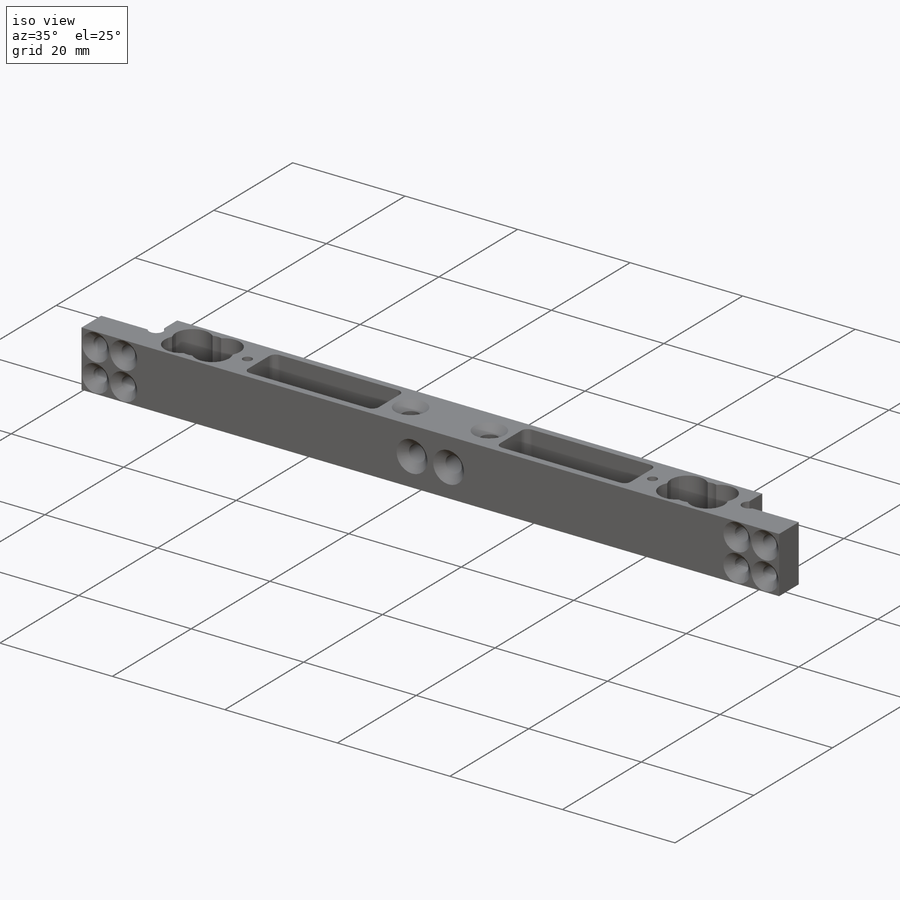
[diagram: iso view]
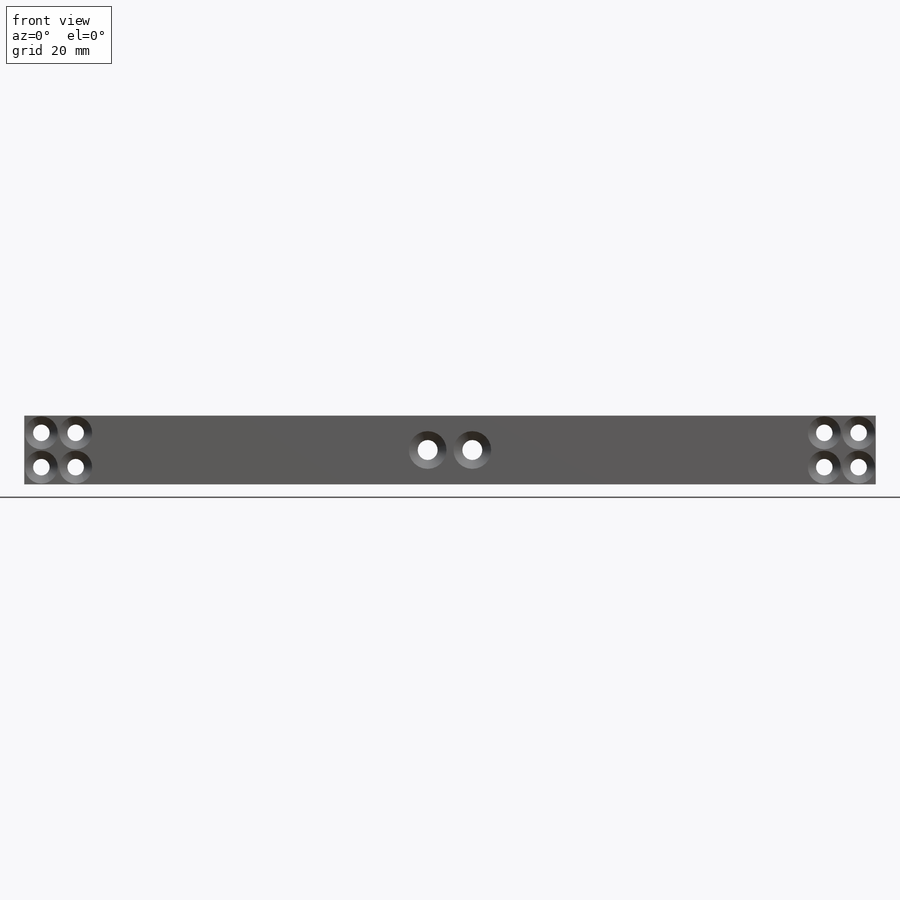
[diagram: front view]
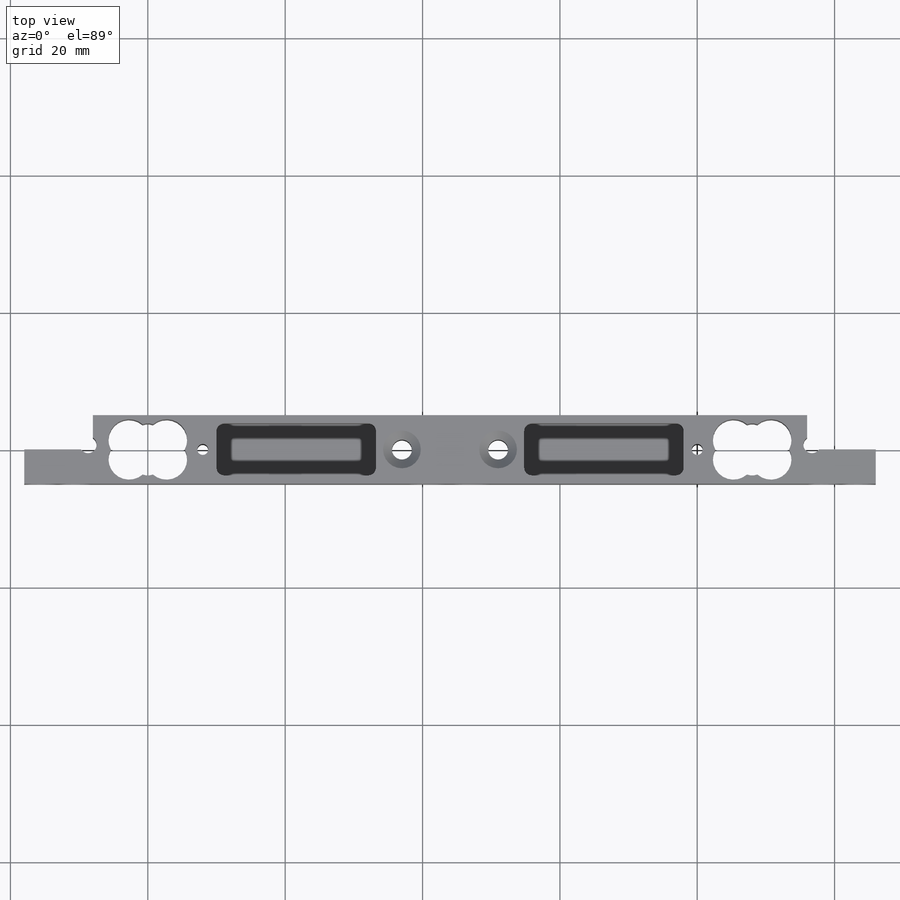
[diagram: top view]
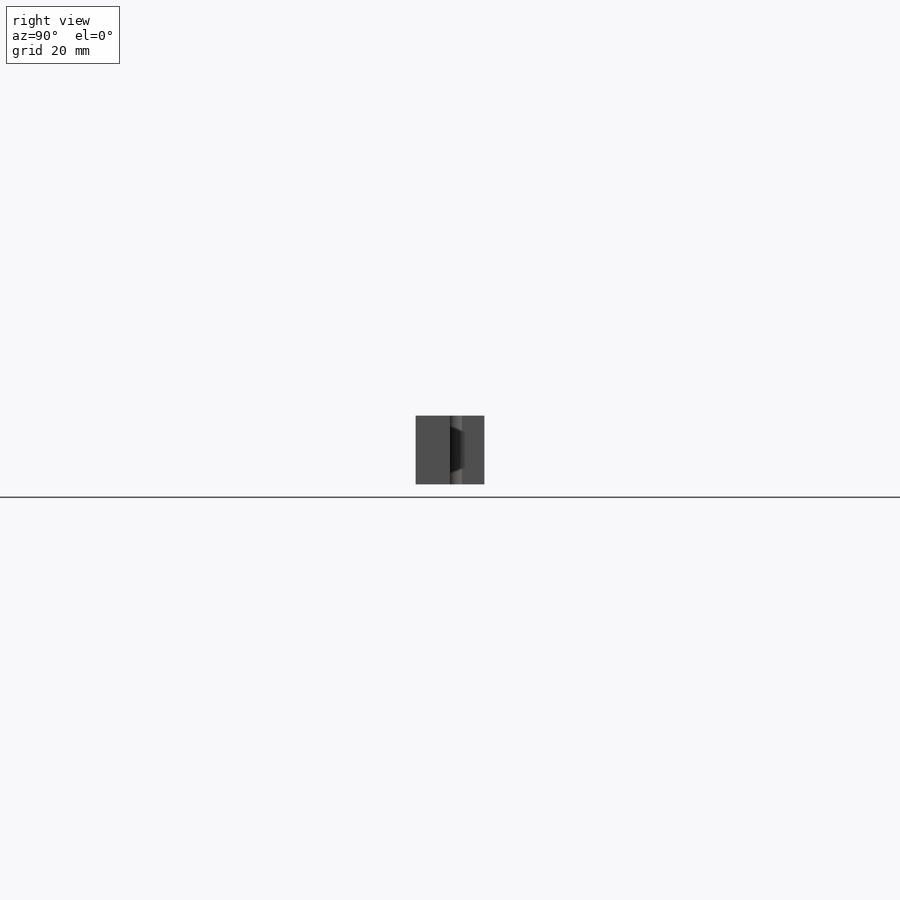
[diagram: right view]
SOLIDWORKS PART (.sldprt)
format: sldprt  version: not decoded by parser v0  size: 676,352 bytes
history: native  units: mm
features: sketch x26, cut_extrude x10, hole x5, mirror x4, chamfer x4, extrude x2, material x1, plane x1 (+12 scaffold rows collapsed)
feature tree (65):
  scaffold x12  (default folders/planes/origin — collapsed)
  material  "6061 Alloy"
  sketch  "Sketch1"  dims[D1=10.0mm D2=40.0mm]
  extrude  "Boss-Extrude1"  Depth=5mm
  sketch  "Sketch3"  dims[D1=6.0mm D2=5.46mm D3=0.6mm]
  cut_extrude  "Cut-Extrude1"  [1 undecoded]
  mirror  "Mirror1"
  sketch  "Sketch5"
  cut_extrude  "Cut-Extrude2"  [1 undecoded]
  sketch  "Sketch6"
  cut_extrude  "Cut-Extrude3"  [1 undecoded]
  sketch  "Sketch7"  dims[D1=8.0mm D2=5.0mm]
  cut_extrude  "Cut-Extrude4"  Depth=14mm
  sketch  "Sketch9"  dims[D1=2.2mm]
  cut_extrude  "Cut-Extrude5"  Depth=14mm
  hole  "M2 Clearance Hole2"  Diameter=2.4mm Depth=11.5mm
  sketch  "Sketch12"  dims[c1.D1=5.0mm c1.D2=2.5mm c2.D1=5.0mm c2.D2=2.5mm c2.D3=5.0mm c3.D2=30.5mm]
  sketch  "Sketch11"  dims[hole-wizard template sketch: 50 standard entries collapsed; hole parameters above]
  sketch  "Sketch14"  dims[D1=4.0mm D2=1.8mm]
  cut_extrude  "Cut-Extrude6"  Depth=10mm
  mirror  "Mirror2"
  sketch  "Sketch13"  dims[D1=128.0mm]
  extrude  "Boss-Extrude2"  [1 undecoded]
  plane  "Plane1"
  sketch  "Sketch16"  dims[c1.D2=3.0mm c1.D3=3.0mm c1.D4=2.0mm c1.D1=88.0mm c2.D2=2.8mm c2.D3=5.46mm c2.D4=1.8mm]
  cut_extrude  "Cut-Extrude7"  Depth=10mm
  mirror  "Mirror3"
  hole  "CSK for M2.5 Countersunk Flat Head Screw5"  Diameter=2.9mm Depth=10mm
  sketch  "Sketch20"  dims[D1=14.0mm]
  sketch  "Sketch19"  dims[hole-wizard template sketch: 55 standard entries collapsed; hole parameters kept: c17.Thru Hole Depth=10.0mm c17.Near C'Sink Dia.=5.5mm c17.D4=~3.666174mm c17.Near C'Sink Angle=90.0deg]
  sketch  "Sketch21"  dims[D4=1.1mm D1=10.0mm D2=1.2mm D3=10.8mm]
  cut_extrude  "Cut-Extrude8"  Depth=1.5mm
  mirror  "Mirror4"
  hole  "CSK for M2.5 Countersunk Flat Head Screw4"  Diameter=2.9mm Depth=10mm
  sketch  "Sketch23"  dims[D1=6.5mm]
  sketch  "Sketch22"  dims[hole-wizard template sketch: 55 standard entries collapsed; hole parameters kept: c17.Thru Hole Depth=10.0mm c17.Near C'Sink Dia.=5.5mm c17.D4=~3.666174mm c17.Near C'Sink Angle=90.0deg]
  hole  "CSK for M2.5 Countersunk Flat Head Screw6"  Diameter=2.9mm Depth=10mm
  sketch  "Sketch25"
  sketch  "Sketch24"  dims[hole-wizard template sketch: 55 standard entries collapsed; hole parameters kept: c17.Thru Hole Depth=10.0mm c17.Near C'Sink Dia.=5.5mm c17.D4=~3.666174mm c17.Near C'Sink Angle=90.0deg]
  sketch  "Sketch26"  dims[D1=124.0mm]
  cut_extrude  "Cut-Extrude10"  Depth=20mm
  chamfer  "Chamfer1"  Distance=1.2mm Angle=45deg
  hole  "Tap Drill for M2 Tap1"  Diameter=1.6mm Depth=10mm
  sketch  "Sketch28"  dims[D1=72.0mm]
  sketch  "Sketch27"  dims[hole-wizard template sketch: 47 standard entries collapsed; hole parameters kept: c15.Hole Depth=10.0mm c15.D3=~14.816244mm c15.Drill Angle=180.0deg]
  sketch  "Sketch29"  dims[D1=2.5mm D2=0.7mm]
  cut_extrude  "Cut-Extrude11"  Depth=10mm
  sketch  "Sketch31"  dims[D1=1.5mm D2=4.0mm]
  sketch  "Sketch33"
  chamfer  "Split Line2"  [1 undecoded]
  chamfer  "Split Line3"  [1 undecoded]
  sketch  "Sketch31<2>"
  chamfer  "Split Line5"  [1 undecoded]
  sketch  "Sketch33<3>"
decode coverage: 34 of 51 modeling features carry decoded parameters
note: ~ marks probable driven/reference dimensions
note: 7 parameter values undecoded
summary: no parameter record found for 7 features; Diameter pulled from absorbed wizard sketch
note: suppression state not decoded; provenance and decode notes live in map.json
